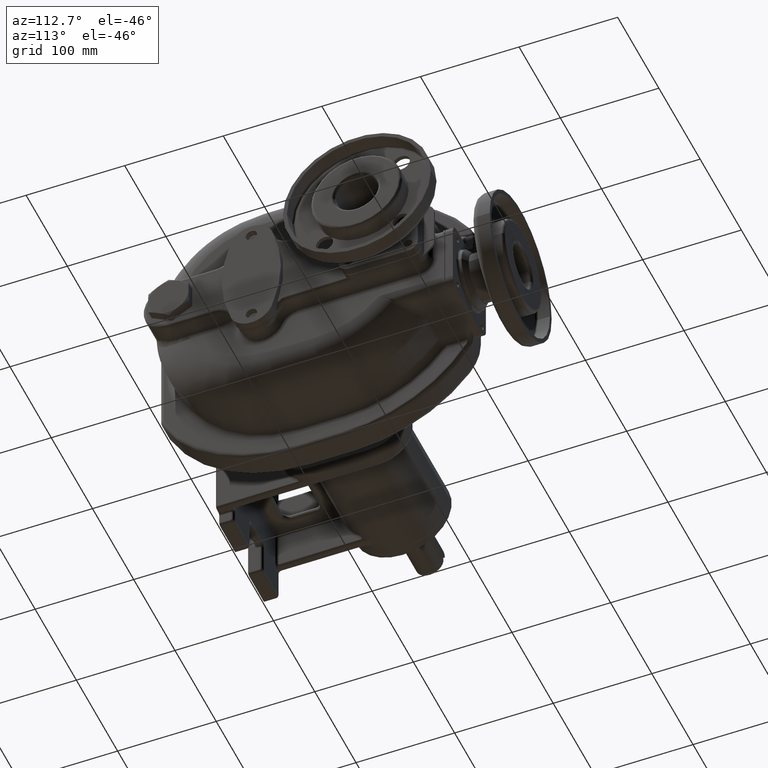
[diagram: clean part render]
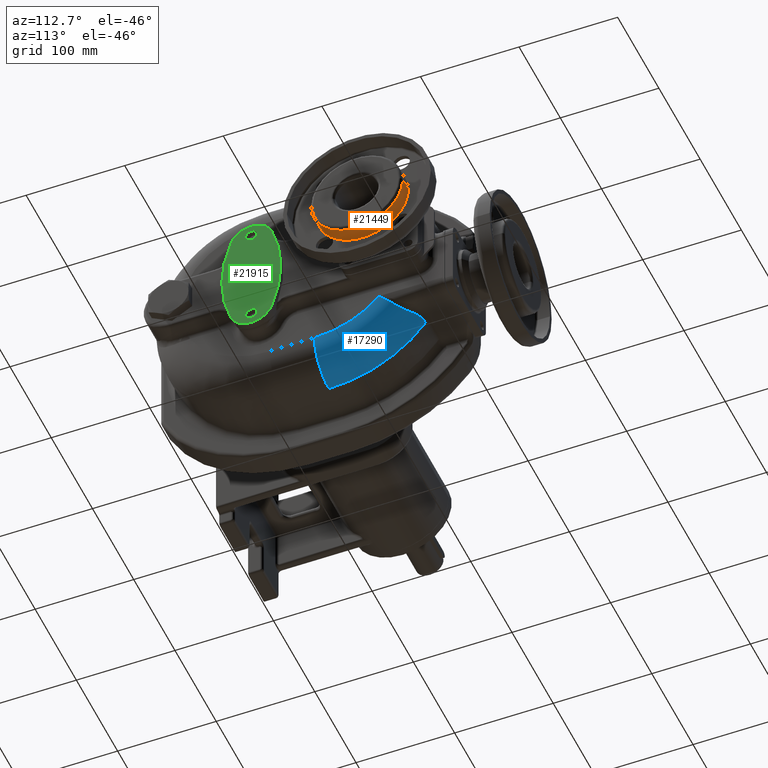
[diagram: same view with three faces highlighted in distinct colors, each labeled with its STEP entity id]
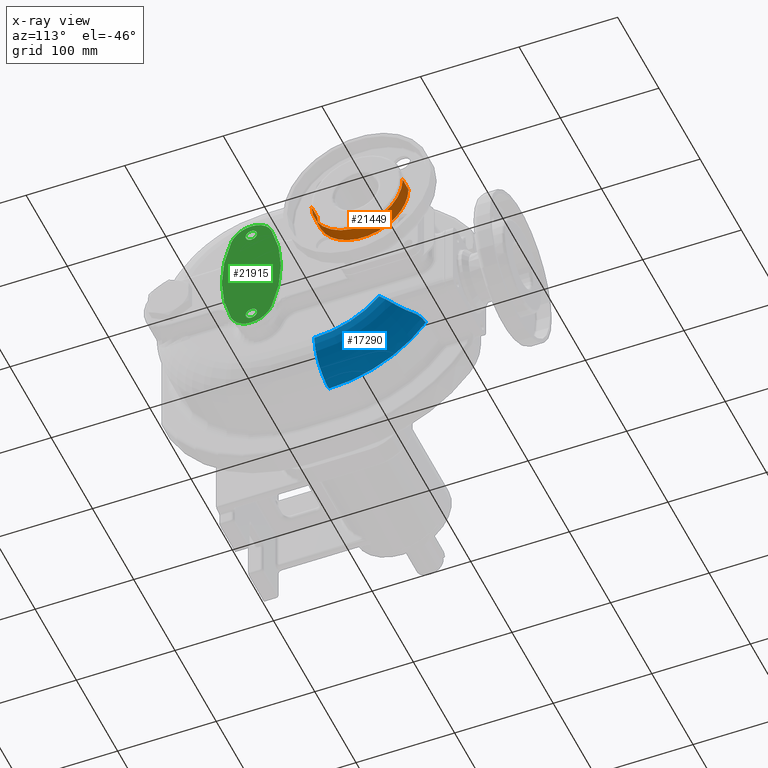
[diagram: x-ray of the same camera — body ghosted, the three highlighted faces saturated]
A machine part, auxiliary view with three faces highlighted in distinct colors.
The next image is the same camera in x-ray (body ghosted, the three faces saturated) — at least one of them is partly hidden behind the body in this view.
Their STEP definitions:

[orange] entity #21449 — the highlighted cylindrical surface (partial cylindrical patch) has radius 46.25 mm, axis along (1, 0, 0).
#7302=CARTESIAN_POINT('',(1.26E2,1.27E2,-9.E0));
#7303=DIRECTION('',(1.E0,0.E0,0.E0));
#7304=DIRECTION('',(0.E0,-7.071067811865E-1,-7.071067811865E-1));
#7305=AXIS2_PLACEMENT_3D('',#7302,#7303,#7304);
#7307=CARTESIAN_POINT('',(1.26E2,1.27E2,-9.E0));
#7308=DIRECTION('',(1.E0,0.E0,0.E0));
#7309=DIRECTION('',(0.E0,-1.E0,0.E0));
#7310=AXIS2_PLACEMENT_3D('',#7307,#7308,#7309);
#7312=CARTESIAN_POINT('',(1.4E2,1.27E2,-9.E0));
#7313=DIRECTION('',(1.E0,0.E0,0.E0));
#7314=DIRECTION('',(0.E0,-1.E0,0.E0));
#7315=AXIS2_PLACEMENT_3D('',#7312,#7313,#7314);
#7317=CARTESIAN_POINT('',(1.26E2,1.27E2,-9.E0));
#7318=DIRECTION('',(1.E0,0.E0,0.E0));
#7319=DIRECTION('',(0.E0,7.071067811865E-1,-7.071067811865E-1));
#7320=AXIS2_PLACEMENT_3D('',#7317,#7318,#7319);
#7332=DIRECTION('',(-1.E0,0.E0,0.E0));
#7333=VECTOR('',#7332,1.4E1);
#7334=CARTESIAN_POINT('',(1.4E2,1.7325E2,-9.E0));
#7335=LINE('',#7334,#7333);
#7341=DIRECTION('',(-1.E0,0.E0,0.E0));
#7342=VECTOR('',#7341,1.4E1);
#7343=CARTESIAN_POINT('',(1.4E2,8.075E1,-9.E0));
#7344=LINE('',#7343,#7342);
#9744=CARTESIAN_POINT('',(1.4E2,8.075E1,-9.E0));
#9746=VERTEX_POINT('',#9744);
#9756=CARTESIAN_POINT('',(1.4E2,1.7325E2,-9.E0));
#9758=VERTEX_POINT('',#9756);
#9811=CARTESIAN_POINT('',(1.26E2,8.075E1,-9.E0));
#9812=VERTEX_POINT('',#9811);
#9813=CARTESIAN_POINT('',(1.26E2,1.7325E2,-9.E0));
#9814=VERTEX_POINT('',#9813);
#9836=CARTESIAN_POINT('',(1.26E2,9.429631137012E1,-4.170368862988E1));
#9838=VERTEX_POINT('',#9836);
#9846=CARTESIAN_POINT('',(1.26E2,1.597036886299E2,-4.170368862988E1));
#9848=VERTEX_POINT('',#9846);
#21433=CARTESIAN_POINT('',(9.575E1,1.27E2,-9.E0));
#21434=DIRECTION('',(1.E0,0.E0,0.E0));
#21435=DIRECTION('',(0.E0,1.E0,0.E0));
#21436=AXIS2_PLACEMENT_3D('',#21433,#21434,#21435);
#21437=CYLINDRICAL_SURFACE('',#21436,4.625E1);
#21438=ORIENTED_EDGE('',*,*,#21401,.F.);
#21439=ORIENTED_EDGE('',*,*,#21393,.F.);
#21441=ORIENTED_EDGE('',*,*,#21440,.F.);
#21443=ORIENTED_EDGE('',*,*,#21442,.T.);
#21445=ORIENTED_EDGE('',*,*,#21444,.T.);
#21446=ORIENTED_EDGE('',*,*,#21373,.F.);
#21447=EDGE_LOOP('',(#21438,#21439,#21441,#21443,#21445,#21446));
#21448=FACE_OUTER_BOUND('',#21447,.F.);
#21449=ADVANCED_FACE('',(#21448),#21437,.T.);
#7306=CIRCLE('',#7305,4.625E1);
#7311=CIRCLE('',#7310,4.625E1);
#7316=CIRCLE('',#7315,4.625E1);
#7321=CIRCLE('',#7320,4.625E1);
#21373=EDGE_CURVE('',#9848,#9814,#7321,.T.);
#21393=EDGE_CURVE('',#9812,#9838,#7311,.T.);
#21401=EDGE_CURVE('',#9838,#9848,#7306,.T.);
#21440=EDGE_CURVE('',#9746,#9812,#7344,.T.);
#21442=EDGE_CURVE('',#9746,#9758,#7316,.T.);
#21444=EDGE_CURVE('',#9758,#9814,#7335,.T.);

[blue] entity #17290 — the highlighted toroidal blend (fillet) surface has major radius 87 mm and minor (blend) radius 35 mm.
#3812=CARTESIAN_POINT('',(5.95E1,1.157267069006E2,-6.6E1));
#3969=CARTESIAN_POINT('',(2.45E1,5.E1,-9.E0));
#3970=DIRECTION('',(1.E0,0.E0,0.E0));
#3971=DIRECTION('',(0.E0,0.E0,-1.E0));
#3972=AXIS2_PLACEMENT_3D('',#3969,#3970,#3971);
#4561=CARTESIAN_POINT('',(5.95E1,5.E1,-9.E0));
#4562=DIRECTION('',(1.E0,0.E0,0.E0));
#4563=DIRECTION('',(0.E0,0.E0,-1.E0));
#4564=AXIS2_PLACEMENT_3D('',#4561,#4562,#4563);
#4619=CARTESIAN_POINT('',(4.322093023255E1,1.410615851660E2,-8.177988644389E1));
#4620=CARTESIAN_POINT('',(4.298019222681E1,1.412689413244E2,-8.176454530307E1));
#4621=CARTESIAN_POINT('',(4.249598599897E1,1.416740272611E2,-8.173465671759E1));
#4622=CARTESIAN_POINT('',(4.176248247647E1,1.422527257971E2,-8.169218050507E1));
#4623=CARTESIAN_POINT('',(4.102204689225E1,1.428030423728E2,-8.165198743395E1));
#4624=CARTESIAN_POINT('',(4.027513004694E1,1.433253256704E2,-8.161402324697E1));
#4625=CARTESIAN_POINT('',(3.952209694456E1,1.438199606877E2,-8.157823174013E1));
#4626=CARTESIAN_POINT('',(3.876333211744E1,1.442872842115E2,-8.154456249399E1));
#4627=CARTESIAN_POINT('',(3.799919614067E1,1.447276202647E2,-8.151296758283E1));
#4628=CARTESIAN_POINT('',(3.723004242922E1,1.451412685795E2,-8.148340259416E1));
#4629=CARTESIAN_POINT('',(3.645621545945E1,1.455285078389E2,-8.145582624649E1));
#4630=CARTESIAN_POINT('',(3.567805072889E1,1.458895966600E2,-8.143020029100E1));
#4631=CARTESIAN_POINT('',(3.489587583125E1,1.462247741395E2,-8.140648940724E1));
#4632=CARTESIAN_POINT('',(3.411001048002E1,1.465342607505E2,-8.138466109111E1));
#4633=CARTESIAN_POINT('',(3.332076726885E1,1.468182588057E2,-8.136468557272E1));
#4634=CARTESIAN_POINT('',(3.252845198898E1,1.470769530342E2,-8.134653573037E1));
#4635=CARTESIAN_POINT('',(3.173336423849E1,1.473105109623E2,-8.133018702214E1));
#4636=CARTESIAN_POINT('',(3.093579789918E1,1.475190832921E2,-8.131561742042E1));
#4637=CARTESIAN_POINT('',(3.013604155462E1,1.477028042139E2,-8.130280735661E1));
#4638=CARTESIAN_POINT('',(2.933437958538E1,1.478617915468E2,-8.129173967591E1));
#4639=CARTESIAN_POINT('',(2.853109104929E1,1.479961472806E2,-8.128239958251E1));
#4640=CARTESIAN_POINT('',(2.772645296264E1,1.481059570669E2,-8.127477462663E1));
#4641=CARTESIAN_POINT('',(2.692074797983E1,1.481912902980E2,-8.126885473089E1));
#4642=CARTESIAN_POINT('',(2.611424202803E1,1.482522023169E2,-8.126463192057E1));
#4643=CARTESIAN_POINT('',(2.530722891816E1,1.482887319606E2,-8.126210063614E1));
#4644=CARTESIAN_POINT('',(2.476905030517E1,1.482968466061E2,-8.126153847708E1));
#4645=CARTESIAN_POINT('',(2.45E1,1.482968466390E2,-8.126153846154E1));
#4647=CARTESIAN_POINT('',(2.45E1,5.E1,-9.6E1));
#4648=DIRECTION('',(0.E0,1.E0,0.E0));
#4649=DIRECTION('',(1.E0,0.E0,0.E0));
#4650=AXIS2_PLACEMENT_3D('',#4647,#4648,#4649);
#4652=CARTESIAN_POINT('',(5.95E1,1.157267069006E2,-6.6E1));
#4653=CARTESIAN_POINT('',(5.949999976867E1,1.159660819078E2,-6.622660566527E1));
#4654=CARTESIAN_POINT('',(5.949070612837E1,1.164446562616E2,-6.667955597954E1));
#4655=CARTESIAN_POINT('',(5.944894457126E1,1.171621161439E2,-6.735730259104E1));
#4656=CARTESIAN_POINT('',(5.937950598032E1,1.178785411527E2,-6.803176732257E1));
#4657=CARTESIAN_POINT('',(5.928261673283E1,1.185934888065E2,-6.870154773119E1));
#4658=CARTESIAN_POINT('',(5.915858170364E1,1.193064862356E2,-6.936523424461E1));
#4659=CARTESIAN_POINT('',(5.900777779084E1,1.200171005156E2,-7.002148029878E1));
#4660=CARTESIAN_POINT('',(5.883065136824E1,1.207249102851E2,-7.066897799027E1));
#4661=CARTESIAN_POINT('',(5.862771293319E1,1.214295168747E2,-7.130647101267E1));
#4662=CARTESIAN_POINT('',(5.839953131771E1,1.221305459463E2,-7.193275797897E1));
#4663=CARTESIAN_POINT('',(5.814672933560E1,1.228276456981E2,-7.254669238847E1));
#4664=CARTESIAN_POINT('',(5.786997877653E1,1.235204875280E2,-7.314718451834E1));
#4665=CARTESIAN_POINT('',(5.756999552959E1,1.242087661963E2,-7.373320254100E1));
#4666=CARTESIAN_POINT('',(5.724753477619E1,1.248921999011E2,-7.430377326594E1));
#4667=CARTESIAN_POINT('',(5.690338629910E1,1.255705302112E2,-7.485798247242E1));
#4668=CARTESIAN_POINT('',(5.653836992015E1,1.262435219091E2,-7.539497489640E1));
#4669=CARTESIAN_POINT('',(5.615333109760E1,1.269109627307E2,-7.591395387980E1));
#4670=CARTESIAN_POINT('',(5.574913669611E1,1.275726630276E2,-7.641418072173E1));
#4671=CARTESIAN_POINT('',(5.532667094727E1,1.282284553561E2,-7.689497375394E1));
#4672=CARTESIAN_POINT('',(5.488683161525E1,1.288781940019E2,-7.735570716609E1));
#4673=CARTESIAN_POINT('',(5.443052637498E1,1.295217544524E2,-7.779580961013E1));
#4674=CARTESIAN_POINT('',(5.395866942131E1,1.301590328130E2,-7.821476259920E1));
#4675=CARTESIAN_POINT('',(5.347217830266E1,1.307899451920E2,-7.861209873878E1));
#4676=CARTESIAN_POINT('',(5.297197100667E1,1.314144270326E2,-7.898739979383E1));
#4677=CARTESIAN_POINT('',(5.245896327973E1,1.320324324265E2,-7.934029463552E1));
#4678=CARTESIAN_POINT('',(5.193406620303E1,1.326439333895E2,-7.967045707354E1));
#4679=CARTESIAN_POINT('',(5.139818400654E1,1.332489191259E2,-7.997760360893E1));
#4680=CARTESIAN_POINT('',(5.085221217211E1,1.338473952336E2,-8.026149110508E1));
#4681=CARTESIAN_POINT('',(5.029703565201E1,1.344393830318E2,-8.052191447479E1));
#4682=CARTESIAN_POINT('',(4.973352772888E1,1.350249184642E2,-8.075870417389E1));
#4683=CARTESIAN_POINT('',(4.916254813078E1,1.356040520183E2,-8.097172410939E1));
#4684=CARTESIAN_POINT('',(4.858494323642E1,1.361768467066E2,-8.116086876906E1));
#4685=CARTESIAN_POINT('',(4.800154709451E1,1.367433756831E2,-8.132606064873E1));
#4686=CARTESIAN_POINT('',(4.741317770868E1,1.373037246708E2,-8.146724919465E1));
#4687=CARTESIAN_POINT('',(4.682063699465E1,1.378579907939E2,-8.158440834587E1));
#4688=CARTESIAN_POINT('',(4.622470931078E1,1.384062829640E2,-8.167753447385E1));
#4689=CARTESIAN_POINT('',(4.562616548611E1,1.389487173633E2,-8.174664349547E1));
#4690=CARTESIAN_POINT('',(4.502576353491E1,1.394854164951E2,-8.179176976275E1));
#4691=CARTESIAN_POINT('',(4.442422935679E1,1.400165257551E2,-8.181296449322E1));
#4692=CARTESIAN_POINT('',(4.382231133950E1,1.405421644432E2,-8.181029189277E1));
#4693=CARTESIAN_POINT('',(4.342128254986E1,1.408890146020E2,-8.179265397447E1));
#4694=CARTESIAN_POINT('',(4.322093023255E1,1.410615851660E2,-8.177988644389E1));
#10000=CARTESIAN_POINT('',(5.95E1,5.E1,-9.6E1));
#10002=VERTEX_POINT('',#10000);
#10004=CARTESIAN_POINT('',(2.45E1,5.E1,-1.31E2));
#10006=VERTEX_POINT('',#10004);
#10145=VERTEX_POINT('',#4619);
#10146=VERTEX_POINT('',#4645);
#10149=VERTEX_POINT('',#3812);
#17275=CARTESIAN_POINT('',(2.45E1,5.E1,-9.E0));
#17276=DIRECTION('',(-1.E0,0.E0,0.E0));
#17277=DIRECTION('',(0.E0,-1.790459006832E-4,-9.999999839713E-1));
#17278=AXIS2_PLACEMENT_3D('',#17275,#17276,#17277);
#17279=TOROIDAL_SURFACE('',#17278,8.7E1,3.5E1);
#17281=ORIENTED_EDGE('',*,*,#17280,.T.);
#17282=ORIENTED_EDGE('',*,*,#16852,.F.);
#17284=ORIENTED_EDGE('',*,*,#17283,.F.);
#17285=ORIENTED_EDGE('',*,*,#17245,.T.);
#17287=ORIENTED_EDGE('',*,*,#17286,.T.);
#17288=EDGE_LOOP('',(#17281,#17282,#17284,#17285,#17287));
#17289=FACE_OUTER_BOUND('',#17288,.F.);
#17290=ADVANCED_FACE('',(#17289),#17279,.T.);
#3973=CIRCLE('',#3972,1.22E2);
#4565=CIRCLE('',#4564,8.7E1);
#4646=B_SPLINE_CURVE_WITH_KNOTS('',3,(#4619,#4620,#4621,#4622,#4623,#4624,#4625,
#4626,#4627,#4628,#4629,#4630,#4631,#4632,#4633,#4634,#4635,#4636,#4637,#4638,
#4639,#4640,#4641,#4642,#4643,#4644,#4645),.UNSPECIFIED.,.F.,.F.,(4,1,1,1,1,1,1,
1,1,1,1,1,1,1,1,1,1,1,1,1,1,1,1,1,4),(0.E0,4.166666666667E-2,8.333333333333E-2,
1.25E-1,1.666666666667E-1,2.083333333333E-1,2.5E-1,2.916666666667E-1,
3.333333333333E-1,3.75E-1,4.166666666667E-1,4.583333333333E-1,5.E-1,
5.416666666667E-1,5.833333333333E-1,6.25E-1,6.666666666667E-1,7.083333333333E-1,
7.5E-1,7.916666666667E-1,8.333333333333E-1,8.75E-1,9.166666666667E-1,
9.583333333333E-1,1.E0),.UNSPECIFIED.);
#4651=CIRCLE('',#4650,3.5E1);
#4695=B_SPLINE_CURVE_WITH_KNOTS('',3,(#4652,#4653,#4654,#4655,#4656,#4657,#4658,
#4659,#4660,#4661,#4662,#4663,#4664,#4665,#4666,#4667,#4668,#4669,#4670,#4671,
#4672,#4673,#4674,#4675,#4676,#4677,#4678,#4679,#4680,#4681,#4682,#4683,#4684,
#4685,#4686,#4687,#4688,#4689,#4690,#4691,#4692,#4693,#4694),.UNSPECIFIED.,.F.,
.F.,(4,1,1,1,1,1,1,1,1,1,1,1,1,1,1,1,1,1,1,1,1,1,1,1,1,1,1,1,1,1,1,1,1,1,1,1,1,
1,1,1,4),(0.E0,2.5E-2,5.E-2,7.5E-2,1.E-1,1.25E-1,1.5E-1,1.75E-1,2.E-1,2.25E-1,
2.5E-1,2.75E-1,3.E-1,3.25E-1,3.5E-1,3.75E-1,4.E-1,4.25E-1,4.5E-1,4.75E-1,5.E-1,
5.25E-1,5.5E-1,5.75E-1,6.E-1,6.25E-1,6.5E-1,6.75E-1,7.E-1,7.25E-1,7.5E-1,
7.75E-1,8.E-1,8.25E-1,8.5E-1,8.75E-1,9.E-1,9.25E-1,9.5E-1,9.75E-1,1.E0),
.UNSPECIFIED.);
#16852=EDGE_CURVE('',#10006,#10146,#3973,.T.);
#17245=EDGE_CURVE('',#10002,#10149,#4565,.T.);
#17280=EDGE_CURVE('',#10145,#10146,#4646,.T.);
#17283=EDGE_CURVE('',#10002,#10006,#4651,.T.);
#17286=EDGE_CURVE('',#10149,#10145,#4695,.T.);

[green] entity #21915 — the highlighted planar face has unit normal (1, 0, 0).
#7598=CARTESIAN_POINT('',(8.1E1,-1.149999999963E2,-9.008318454327E0));
#7599=DIRECTION('',(1.E0,0.E0,0.E0));
#7600=DIRECTION('',(0.E0,9.322295967066E-1,-3.618673500390E-1));
#7601=AXIS2_PLACEMENT_3D('',#7598,#7599,#7600);
#7603=CARTESIAN_POINT('',(8.1E1,-5.E0,-5.171663690865E1));
#7604=DIRECTION('',(1.E0,0.E0,0.E0));
#7605=DIRECTION('',(0.E0,-9.323701608822E-1,-3.615050249949E-1));
#7606=AXIS2_PLACEMENT_3D('',#7603,#7604,#7605);
#7608=CARTESIAN_POINT('',(8.1E1,1.05E2,-9.008318454326E0));
#7609=DIRECTION('',(1.E0,0.E0,0.E0));
#7610=DIRECTION('',(0.E0,-9.322295967101E-1,3.618673500301E-1));
#7611=AXIS2_PLACEMENT_3D('',#7608,#7609,#7610);
#7613=CARTESIAN_POINT('',(8.1E1,-5.E0,3.37E1));
#7614=DIRECTION('',(1.E0,0.E0,0.E0));
#7615=DIRECTION('',(0.E0,9.323701608822E-1,3.615050249948E-1));
#7616=AXIS2_PLACEMENT_3D('',#7613,#7614,#7615);
#7618=CARTESIAN_POINT('',(8.1E1,-5.E0,4.35E1));
#7619=DIRECTION('',(1.E0,0.E0,0.E0));
#7620=DIRECTION('',(0.E0,0.E0,1.E0));
#7621=AXIS2_PLACEMENT_3D('',#7618,#7619,#7620);
#7623=CARTESIAN_POINT('',(8.1E1,-5.E0,4.35E1));
#7624=DIRECTION('',(1.E0,0.E0,0.E0));
#7625=DIRECTION('',(0.E0,0.E0,-1.E0));
#7626=AXIS2_PLACEMENT_3D('',#7623,#7624,#7625);
#7628=CARTESIAN_POINT('',(8.1E1,-5.E0,-6.15E1));
#7629=DIRECTION('',(-1.E0,0.E0,0.E0));
#7630=DIRECTION('',(0.E0,0.E0,-1.E0));
#7631=AXIS2_PLACEMENT_3D('',#7628,#7629,#7630);
#7633=CARTESIAN_POINT('',(8.1E1,-5.E0,-6.15E1));
#7634=DIRECTION('',(-1.E0,0.E0,0.E0));
#7635=DIRECTION('',(0.E0,0.E0,1.E0));
#7636=AXIS2_PLACEMENT_3D('',#7633,#7634,#7635);
#9449=CARTESIAN_POINT('',(8.1E1,1.551214353941E1,-5.966974745854E1));
#9450=CARTESIAN_POINT('',(8.1E1,1.551214353941E1,4.165311054989E1));
#9451=VERTEX_POINT('',#9449);
#9452=VERTEX_POINT('',#9450);
#9453=CARTESIAN_POINT('',(8.1E1,-2.551214353941E1,4.165311054989E1));
#9454=VERTEX_POINT('',#9453);
#9455=CARTESIAN_POINT('',(8.1E1,-2.551214353941E1,-5.966974745854E1));
#9456=VERTEX_POINT('',#9455);
#9459=CARTESIAN_POINT('',(8.1E1,-5.E0,4.925E1));
#9460=CARTESIAN_POINT('',(8.1E1,-5.E0,3.775E1));
#9461=VERTEX_POINT('',#9459);
#9462=VERTEX_POINT('',#9460);
#9463=CARTESIAN_POINT('',(8.1E1,-5.E0,-6.725E1));
#9464=CARTESIAN_POINT('',(8.1E1,-5.E0,-5.575E1));
#9465=VERTEX_POINT('',#9463);
#9466=VERTEX_POINT('',#9464);
#21892=CARTESIAN_POINT('',(8.1E1,-5.E0,-9.E0));
#21893=DIRECTION('',(1.E0,0.E0,0.E0));
#21894=DIRECTION('',(0.E0,0.E0,-1.E0));
#21895=AXIS2_PLACEMENT_3D('',#21892,#21893,#21894);
#21896=PLANE('',#21895);
#21897=ORIENTED_EDGE('',*,*,#18538,.F.);
#21898=ORIENTED_EDGE('',*,*,#20183,.F.);
#21899=ORIENTED_EDGE('',*,*,#18251,.F.);
#21900=ORIENTED_EDGE('',*,*,#18518,.F.);
#21901=EDGE_LOOP('',(#21897,#21898,#21899,#21900));
#21902=FACE_OUTER_BOUND('',#21901,.F.);
#21904=ORIENTED_EDGE('',*,*,#21903,.T.);
#21906=ORIENTED_EDGE('',*,*,#21905,.T.);
#21907=EDGE_LOOP('',(#21904,#21906));
#21908=FACE_BOUND('',#21907,.F.);
#21910=ORIENTED_EDGE('',*,*,#21909,.F.);
#21912=ORIENTED_EDGE('',*,*,#21911,.F.);
#21913=EDGE_LOOP('',(#21910,#21912));
#21914=FACE_BOUND('',#21913,.F.);
#21915=ADVANCED_FACE('',(#21902,#21908,#21914),#21896,.T.);
#7602=CIRCLE('',#7601,1.399999999966E2);
#7607=CIRCLE('',#7606,2.2E1);
#7612=CIRCLE('',#7611,1.4E2);
#7617=CIRCLE('',#7616,2.2E1);
#7622=CIRCLE('',#7621,5.75E0);
#7627=CIRCLE('',#7626,5.75E0);
#7632=CIRCLE('',#7631,5.75E0);
#7637=CIRCLE('',#7636,5.75E0);
#18251=EDGE_CURVE('',#9454,#9456,#7612,.T.);
#18518=EDGE_CURVE('',#9452,#9454,#7617,.T.);
#18538=EDGE_CURVE('',#9451,#9452,#7602,.T.);
#20183=EDGE_CURVE('',#9456,#9451,#7607,.T.);
#21903=EDGE_CURVE('',#9461,#9462,#7622,.T.);
#21905=EDGE_CURVE('',#9462,#9461,#7627,.T.);
#21909=EDGE_CURVE('',#9465,#9466,#7632,.T.);
#21911=EDGE_CURVE('',#9466,#9465,#7637,.T.);